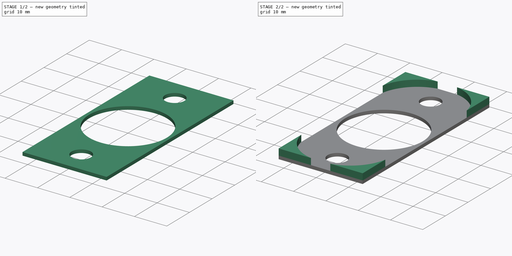
[diagram: build sequence overview — one tinted view per stage of 2, left to right]
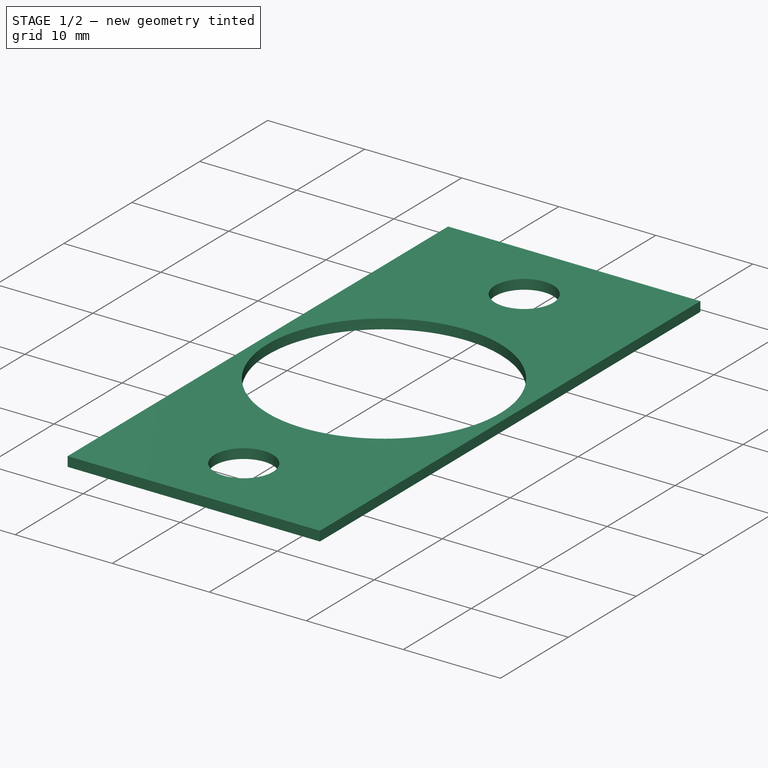
[diagram: stage 1 of 2 — iso view after this stage's code; geometry added in this stage tinted green]
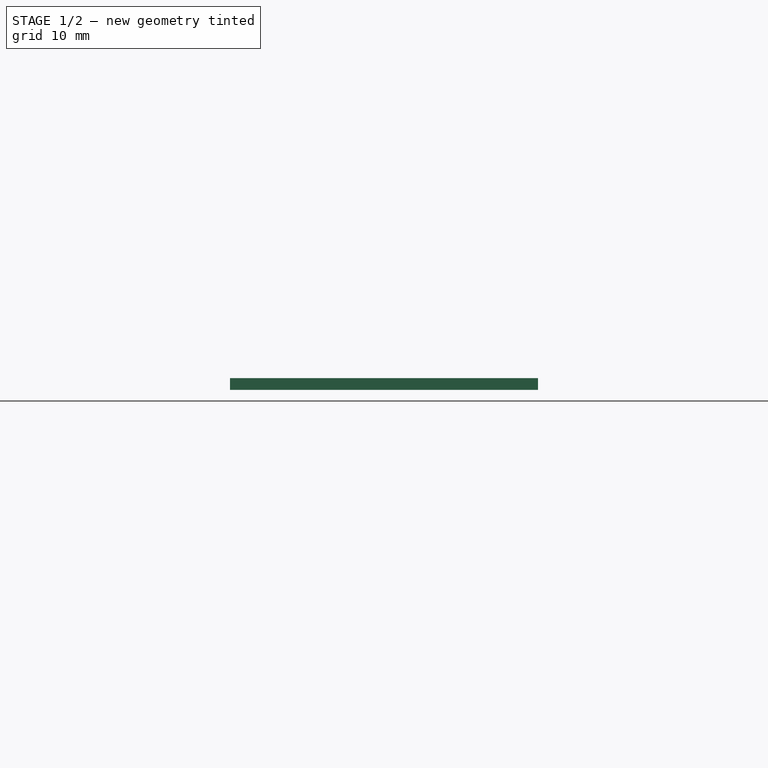
[diagram: stage 1 of 2 — front view after this stage's code; geometry added in this stage tinted green]
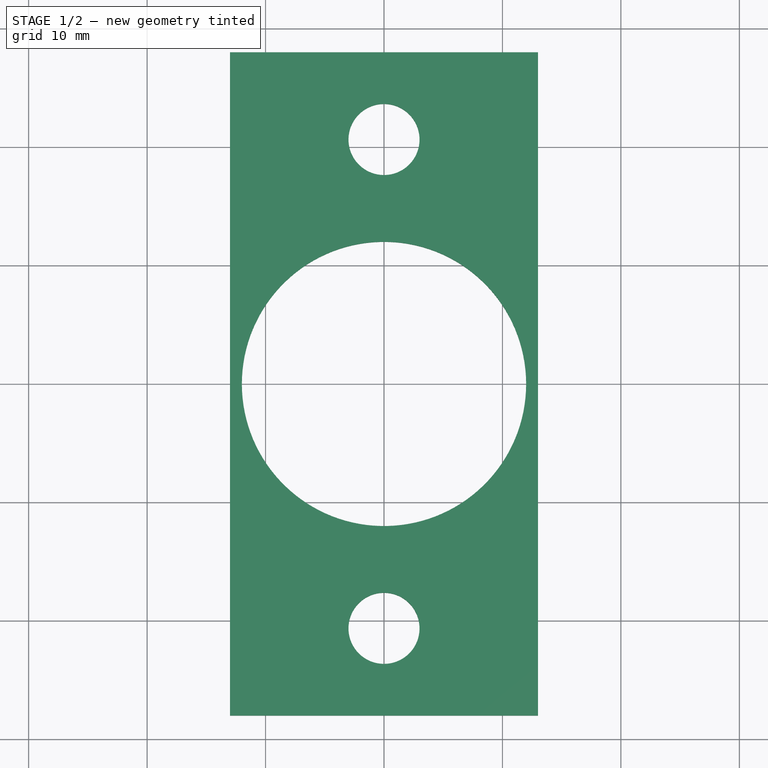
[diagram: stage 1 of 2 — top view after this stage's code; geometry added in this stage tinted green]
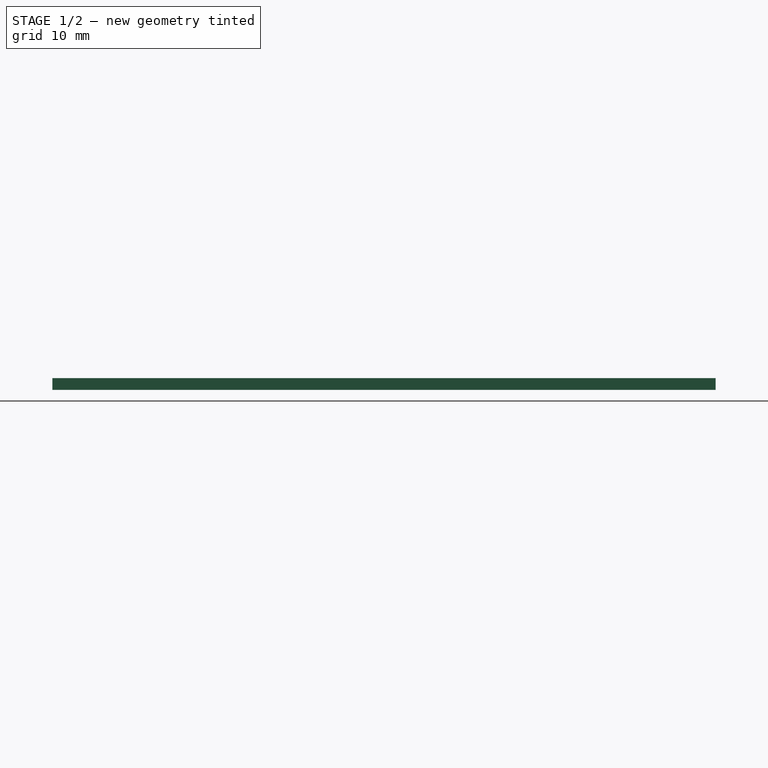
[diagram: stage 1 of 2 — right view after this stage's code; geometry added in this stage tinted green]
FCSTD DOCUMENT  (FreeCAD 0.20R29603 (Git))
Label: lock striker plate spacer
License: All rights reserved
LicenseURL: http://en.wikipedia.org/wiki/All_rights_reserved
objects: Sketcher::SketchObject×2, PartDesign::Pad×2, PartDesign::Body×1
note: 7 computed .brp shape members not serialized (recipe doc carries the construction recipe); baked Part::Feature solids carry a one-line shape summary decoded from their .brp

FEATURE [Sketcher::SketchObject] Sketch
  FullyConstrained = true
  MapMode = 5
  Support = -> [XY_Plane]
  sketch-geometry (9):
    g0: LineSegment StartX=-13 StartY=28 StartZ=0 EndX=-13 EndY=-28 EndZ=0
    g1: LineSegment StartX=-13 StartY=-28 StartZ=0 EndX=13 EndY=-28 EndZ=0
    g2: LineSegment StartX=13 StartY=-28 StartZ=0 EndX=13 EndY=28 EndZ=0
    g3: LineSegment StartX=13 StartY=28 StartZ=0 EndX=-13 EndY=28 EndZ=0
    g4: GeomPoint X=0 Y=0 Z=0
    g5: Circle CenterX=0 CenterY=20.6375 CenterZ=0 NormalX=0 NormalY=0 NormalZ=1 AngleXU=0 Radius=3
    g6: Circle CenterX=0 CenterY=-20.6375 CenterZ=0 NormalX=0 NormalY=0 NormalZ=1 AngleXU=0 Radius=3
    g7: Circle CenterX=0 CenterY=0 CenterZ=0 NormalX=0 NormalY=0 NormalZ=1 AngleXU=0 Radius=12
    g8: GeomPoint X=-12 Y=0 Z=0
  constraints (21):
    c: Coincident(g0,g1)
    c: Coincident(g1,g2)
    c: Coincident(g2,g3)
    c: Coincident(g3,g0)
    c: Horizontal(g1)
    c: Horizontal(g3)
    c: Vertical(g0)
    c: Vertical(g2)
    c: Symmetric(g1,g0,g4)
    c: Coincident(g4,g-1)
    c: PointOnObject(g5,g-2)
    c: DistanceY(g2,g2) = 56
    c: DistanceX(g3,g3) = 26
    c: DistanceY(g6,g5) = 41.275
    c: Symmetric(g5,g6,g4)
    c: Equal(g5,g6)
    c: Diameter(g5) = 6
    c: Coincident(g7,g4)
    c: PointOnObject(g8,g7)
    c: PointOnObject(g8,g-1)
    c: DistanceX(g0,g8) = 1
FEATURE [PartDesign::Pad] Pad
  Direction = (0,0,1)
  Length = 1
  Length2 = 10
  Profile = -> Sketch
  ReferenceAxis = -> Sketch [N_Axis]
  Type = 0
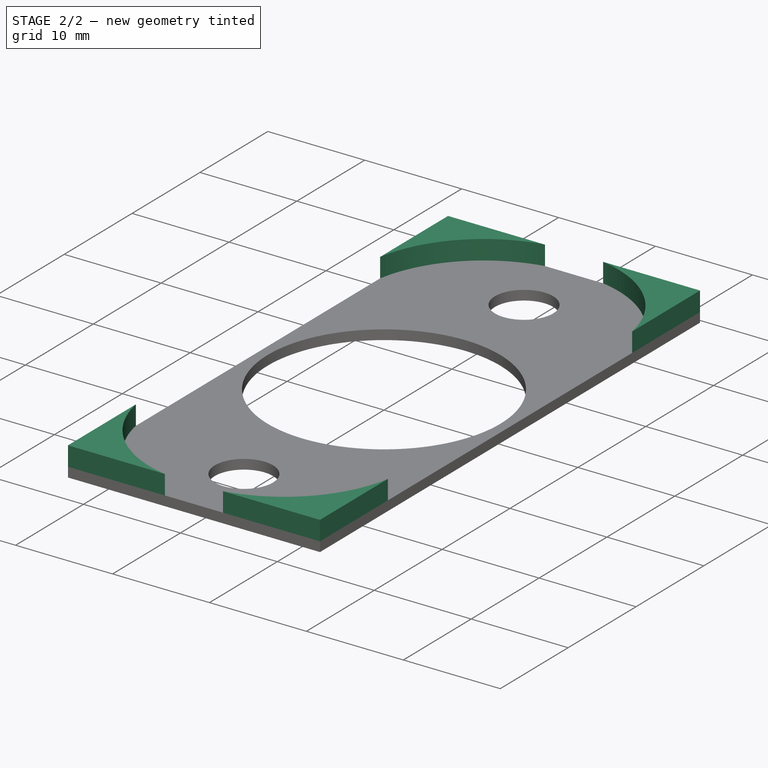
[diagram: stage 2 of 2 — iso view after this stage's code; geometry added in this stage tinted green]
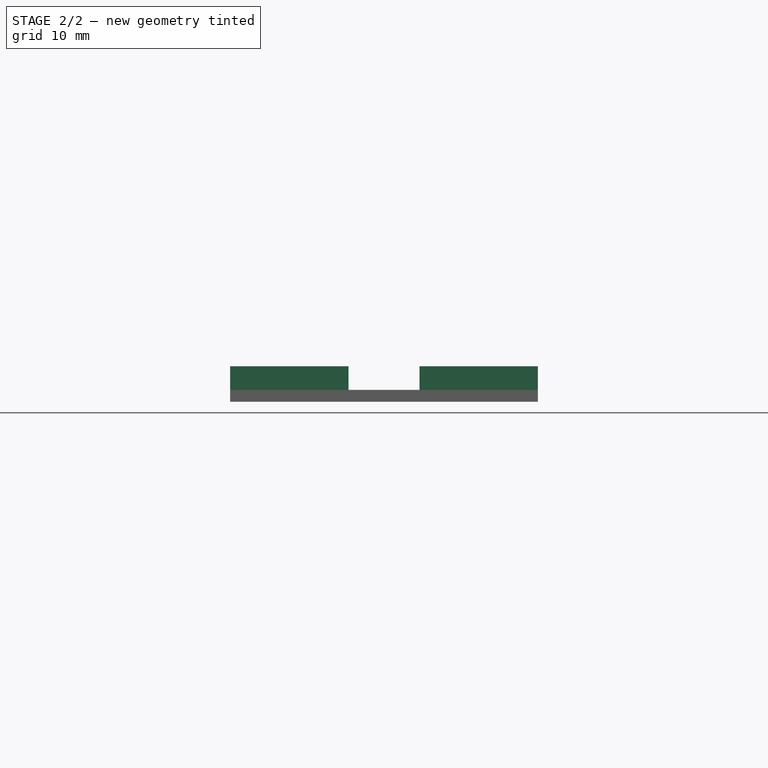
[diagram: stage 2 of 2 — front view after this stage's code; geometry added in this stage tinted green]
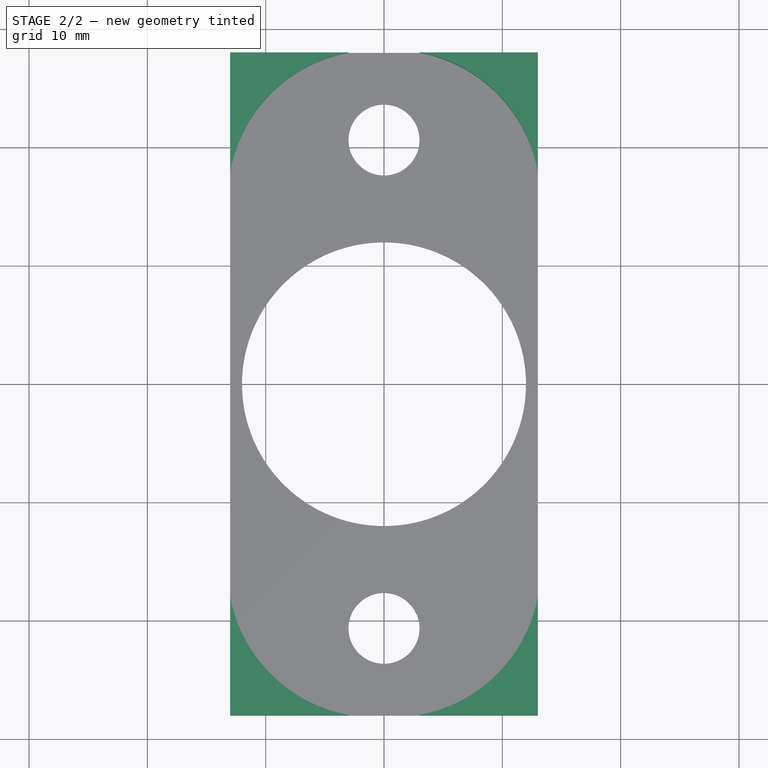
[diagram: stage 2 of 2 — top view after this stage's code; geometry added in this stage tinted green]
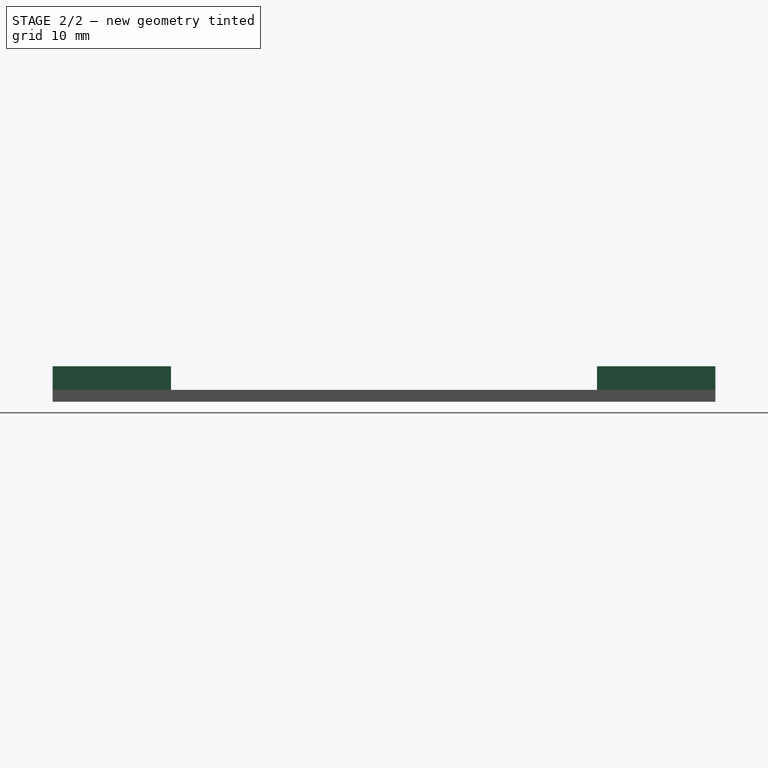
[diagram: stage 2 of 2 — right view after this stage's code; geometry added in this stage tinted green]
FEATURE [Sketcher::SketchObject] Sketch001
  ExternalGeometry = -> [Pad]
  FullyConstrained = true
  MapMode = 5
  Support = -> [XY_Plane]
  sketch-geometry (12):
    g0: ArcOfCircle CenterX=-0.71131 CenterY=15.7113 CenterZ=0 NormalX=0 NormalY=0 NormalZ=1 AngleXU=0 Radius=12.5 StartAngle=1.75493 EndAngle=2.95746
    g1: LineSegment StartX=-13 StartY=18 StartZ=0 EndX=-13 EndY=28 EndZ=0
    g2: LineSegment StartX=-13 StartY=28 StartZ=0 EndX=-3 EndY=28 EndZ=0
    g3: ArcOfCircle CenterX=0.71131 CenterY=15.7113 CenterZ=0 NormalX=0 NormalY=0 NormalZ=1 AngleXU=0 Radius=12.5 StartAngle=0.184134 EndAngle=1.38666
    g4: ArcOfCircle CenterX=-0.71131 CenterY=-15.7113 CenterZ=0 NormalX=0 NormalY=0 NormalZ=1 AngleXU=0 Radius=12.5 StartAngle=3.32573 EndAngle=4.52826
    g5: ArcOfCircle CenterX=0.71131 CenterY=-15.7113 CenterZ=0 NormalX=0 NormalY=0 NormalZ=1 AngleXU=0 Radius=12.5 StartAngle=4.89652 EndAngle=6.09905
    g6: LineSegment StartX=-13 StartY=-18 StartZ=0 EndX=-13 EndY=-28 EndZ=0
    g7: LineSegment StartX=-13 StartY=-28 StartZ=0 EndX=-3 EndY=-28 EndZ=0
    g8: LineSegment StartX=3 StartY=-28 StartZ=0 EndX=13 EndY=-28 EndZ=0
    g9: LineSegment StartX=13 StartY=-28 StartZ=0 EndX=13 EndY=-18 EndZ=0
    g10: LineSegment StartX=13 StartY=18 StartZ=0 EndX=13 EndY=28 EndZ=0
    g11: LineSegment StartX=13 StartY=28 StartZ=0 EndX=3 EndY=28 EndZ=0
  constraints (36):
    c: PointOnObject(g0,g-5)
    c: PointOnObject(g0,g-3)
    c: DistanceY(g0,g-5) = 10
    c: DistanceX(g-5,g0) = 10
    c: Coincident(g1,g0)
    c: Coincident(g1,g-5)
    c: Coincident(g2,g1)
    c: Coincident(g2,g0)
    c: PointOnObject(g3,g-5)
    c: PointOnObject(g3,g-4)
    c: PointOnObject(g4,g-3)
    c: PointOnObject(g4,g-6)
    c: PointOnObject(g5,g-4)
    c: PointOnObject(g5,g-6)
    c: Equal(g0,g3)
    c: Equal(g0,g4)
    c: Equal(g0,g5)
    c: DistanceY(g-6,g4) = 10
    c: DistanceX(g-6,g4) = 10
    c: DistanceX(g5,g-6) = 10
    c: DistanceY(g-6,g5) = 10
    c: DistanceY(g3,g-5) = 10
    c: DistanceX(g3,g-5) = 10
    c: Coincident(g6,g4)
    c: Coincident(g6,g-6)
    c: Coincident(g7,g6)
    c: Coincident(g7,g4)
    c: Coincident(g8,g5)
    c: Coincident(g8,g-6)
    c: Coincident(g9,g8)
    c: Coincident(g9,g5)
    c: Coincident(g10,g3)
    c: Coincident(g10,g-5)
    c: Coincident(g11,g10)
    c: Coincident(g11,g3)
    c: Diameter(g0) = 25
FEATURE [PartDesign::Pad] Pad001
  BaseFeature = -> Pad
  Direction = (0,0,1)
  Length = 3
  Length2 = 10
  Profile = -> Sketch001
  ReferenceAxis = -> Sketch001 [N_Axis]
  Type = 0
FEATURE [PartDesign::Body] Body
  Group = -> [Sketch,Pad,Sketch001,Pad001]
  Origin = -> Origin
  Tip = -> Pad001
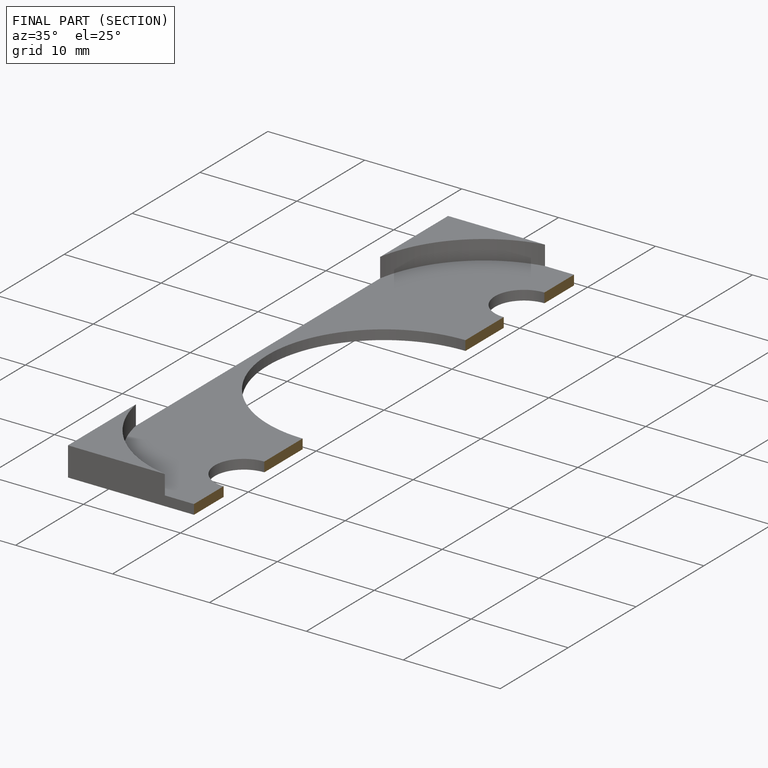
[diagram: finished part — half-section view (interior)]
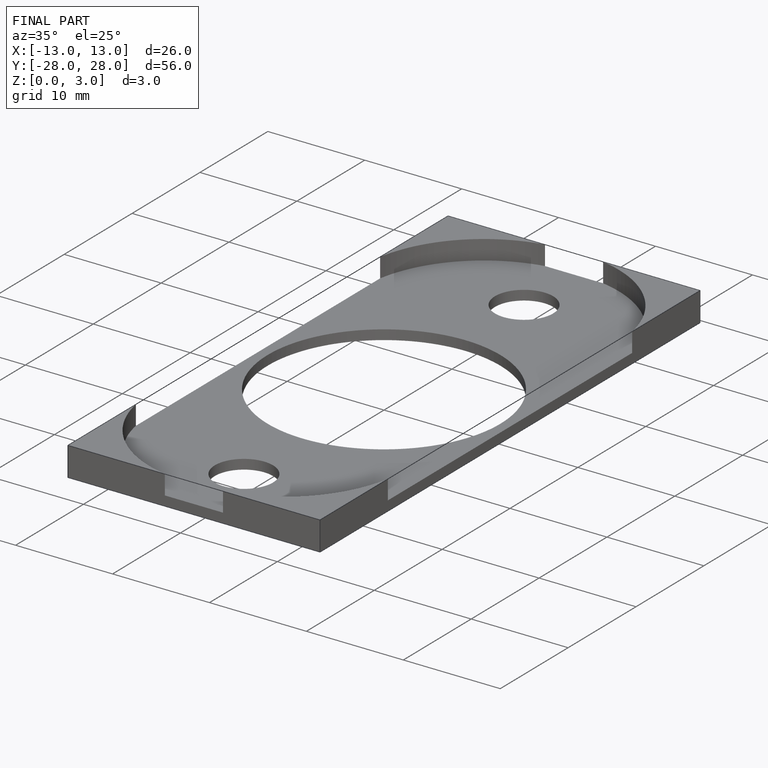
[diagram: finished part — iso view with bounding-box wireframe]
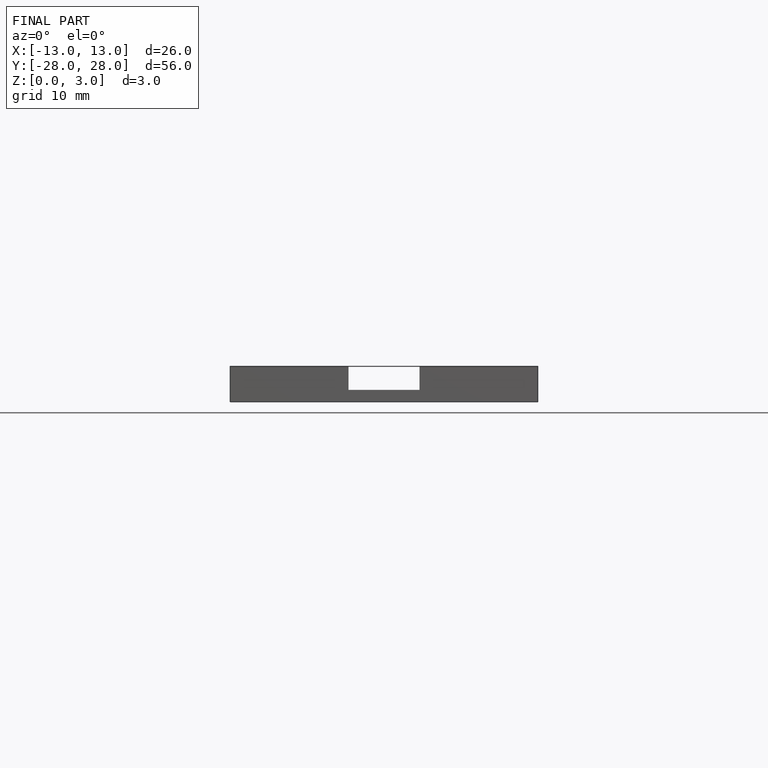
[diagram: finished part — front view with bounding-box wireframe]
